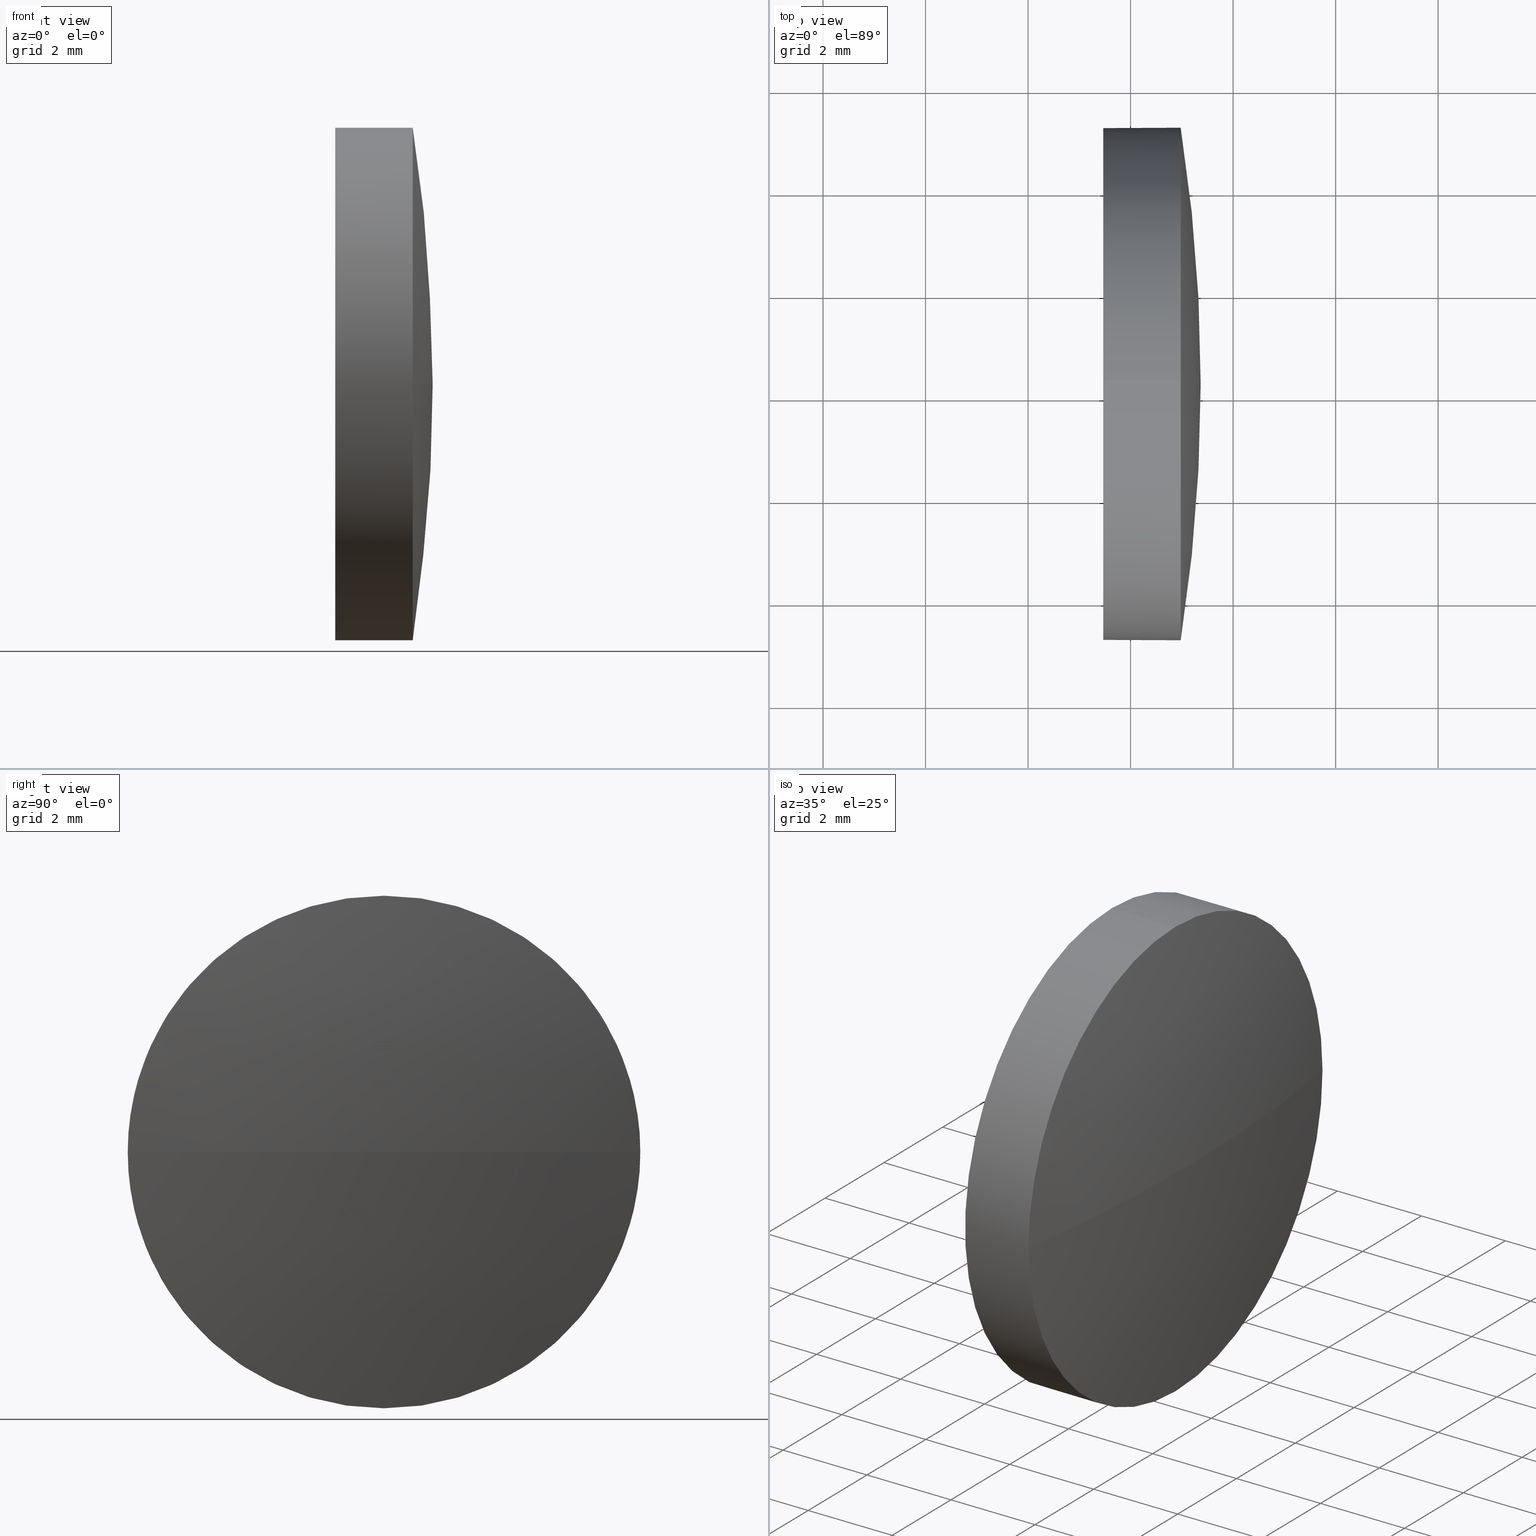
[diagram: canonical four-view strip — front | top / right | iso, engineering-drawing reading convention]
A machine part, canonical four-view strip (front | top / right | iso — engineering-drawing reading convention). The complete STEP part file that produces these views, byte-faithful:
ISO-10303-21;
HEADER;
FILE_DESCRIPTION (( 'STEP AP214' ),
    '1' );
FILE_NAME ('100107.STEP',
    '2019-05-14T01:04:19',
    ( '' ),
    ( '' ),
    'SwSTEP 2.0',
    'SolidWorks 2016',
    '' );
FILE_SCHEMA (( 'AUTOMOTIVE_DESIGN' ));
ENDSEC;

DATA;
#1 = CIRCLE ( 'NONE', #57, 5.000000000000004400 ) ;
#2 = EDGE_CURVE ( 'NONE', #117, #3, #177, .T. ) ;
#3 = VERTEX_POINT ( 'NONE', #33 ) ;
#4 = LINE ( 'NONE', #141, #72 ) ;
#5 = ADVANCED_FACE ( 'NONE', ( #59 ), #35, .T. ) ;
#6 =( GEOMETRIC_REPRESENTATION_CONTEXT ( 3 ) GLOBAL_UNCERTAINTY_ASSIGNED_CONTEXT ( ( #114 ) ) GLOBAL_UNIT_ASSIGNED_CONTEXT ( ( #158, #98, #94 ) ) REPRESENTATION_CONTEXT ( 'NONE', 'WORKASPACE' ) );
#7 = EDGE_LOOP ( 'NONE', ( #173, #161, #135, #27, #102 ) ) ;
#8 = CARTESIAN_POINT ( 'NONE',  ( 565.1214862982791400, 196.2413410998473800, 0.0000000000000000000 ) ) ;
#9 = DIRECTION ( 'NONE',  ( 0.0000000000000000000, -1.000000000000000000, -1.224646799147353200E-016 ) ) ;
#10 = PRODUCT_DEFINITION_FORMATION_WITH_SPECIFIED_SOURCE ( '�κ�', '', #87, .NOT_KNOWN. ) ;
#11 = DIRECTION ( 'NONE',  ( -1.000000000000000000, -0.0000000000000000000, -0.0000000000000000000 ) ) ;
#12 = ORIENTED_EDGE ( 'NONE', *, *, #146, .F. ) ;
#13 = ORIENTED_EDGE ( 'NONE', *, *, #63, .T. ) ;
#14 =( GEOMETRIC_REPRESENTATION_CONTEXT ( 3 ) GLOBAL_UNCERTAINTY_ASSIGNED_CONTEXT ( ( #128 ) ) GLOBAL_UNIT_ASSIGNED_CONTEXT ( ( #38, #92, #54 ) ) REPRESENTATION_CONTEXT ( 'NONE', 'WORKASPACE' ) );
#15 = CIRCLE ( 'NONE', #165, 5.000000000000004400 ) ;
#16 = AXIS2_PLACEMENT_3D ( 'NONE', #166, #139, #106 ) ;
#17 = ORIENTED_EDGE ( 'NONE', *, *, #85, .T. ) ;
#18 =( LENGTH_UNIT ( ) NAMED_UNIT ( * ) SI_UNIT ( .MILLI., .METRE. ) );
#19 = CARTESIAN_POINT ( 'NONE',  ( 596.9777683495610700, 196.2413410998470100, -5.000000000000004400 ) ) ;
#20 = CARTESIAN_POINT ( 'NONE',  ( 595.4677683495610800, 196.2413410998470100, 0.0000000000000000000 ) ) ;
#21 = DIRECTION ( 'NONE',  ( -1.000000000000000000, -0.0000000000000000000, -0.0000000000000000000 ) ) ;
#22 = SPHERICAL_SURFACE ( 'NONE', #178, 32.24628205128185200 ) ;
#23 = DIRECTION ( 'NONE',  ( 0.0000000000000000000, 0.0000000000000000000, 1.000000000000000000 ) ) ;
#24 = DIRECTION ( 'NONE',  ( 0.0000000000000000000, 0.0000000000000000000, 1.000000000000000000 ) ) ;
#25 = ORIENTED_EDGE ( 'NONE', *, *, #103, .T. ) ;
#26 = MECHANICAL_DESIGN_GEOMETRIC_PRESENTATION_REPRESENTATION (  '', ( #162 ), #174 ) ;
#27 = ORIENTED_EDGE ( 'NONE', *, *, #63, .F. ) ;
#28 = PRESENTATION_STYLE_ASSIGNMENT (( #50 ) ) ;
#29 = APPLICATION_CONTEXT ( 'automotive_design' ) ;
#30 = COLOUR_RGB ( '',1.000000000000000000, 1.000000000000000000, 1.000000000000000000 ) ;
#31 = FILL_AREA_STYLE_COLOUR ( '', #101 ) ;
#32 = AXIS2_PLACEMENT_3D ( 'NONE', #134, #58, #118 ) ;
#33 = CARTESIAN_POINT ( 'NONE',  ( 596.9777683495610700, 196.2413410998470100, 5.000000000000004400 ) ) ;
#34 = CARTESIAN_POINT ( 'NONE',  ( 565.1214862982791400, 196.2413410998473800, 0.0000000000000000000 ) ) ;
#35 = SPHERICAL_SURFACE ( 'NONE', #48, 32.24628205128185200 ) ;
#36 = DIRECTION ( 'NONE',  ( -1.000000000000000000, -0.0000000000000000000, -0.0000000000000000000 ) ) ;
#37 = FILL_AREA_STYLE ('',( #111 ) ) ;
#38 =( LENGTH_UNIT ( ) NAMED_UNIT ( * ) SI_UNIT ( .MILLI., .METRE. ) );
#39 = ORIENTED_EDGE ( 'NONE', *, *, #53, .F. ) ;
#40 = ORIENTED_EDGE ( 'NONE', *, *, #103, .F. ) ;
#41 = PRODUCT_RELATED_PRODUCT_CATEGORY ( 'part', '', ( #87 ) ) ;
#42 = ADVANCED_BREP_SHAPE_REPRESENTATION ( '100107', ( #182, #32 ), #14 ) ;
#43 = SURFACE_STYLE_USAGE ( .BOTH. , #137 ) ;
#44 = ORIENTED_EDGE ( 'NONE', *, *, #2, .F. ) ;
#45 = DIRECTION ( 'NONE',  ( 0.0000000000000000000, 0.0000000000000000000, 1.000000000000000000 ) ) ;
#46 = PRESENTATION_STYLE_ASSIGNMENT (( #43 ) ) ;
#47 = DIRECTION ( 'NONE',  ( 0.0000000000000000000, -1.224646799147353200E-016, 1.000000000000000000 ) ) ;
#48 = AXIS2_PLACEMENT_3D ( 'NONE', #8, #152, #167 ) ;
#49 = CARTESIAN_POINT ( 'NONE',  ( 595.4677683495610800, 196.2413410998470100, 0.0000000000000000000 ) ) ;
#50 = SURFACE_STYLE_USAGE ( .BOTH. , #143 ) ;
#51 = ORIENTED_EDGE ( 'NONE', *, *, #67, .F. ) ;
#52 = EDGE_CURVE ( 'NONE', #159, #55, #15, .T. ) ;
#53 = EDGE_CURVE ( 'NONE', #99, #91, #1, .T. ) ;
#54 =( NAMED_UNIT ( * ) SI_UNIT ( $, .STERADIAN. ) SOLID_ANGLE_UNIT ( ) );
#55 = VERTEX_POINT ( 'NONE', #108 ) ;
#56 = CIRCLE ( 'NONE', #109, 32.24628205128185200 ) ;
#57 = AXIS2_PLACEMENT_3D ( 'NONE', #123, #64, #86 ) ;
#58 = DIRECTION ( 'NONE',  ( 0.0000000000000000000, 0.0000000000000000000, 1.000000000000000000 ) ) ;
#59 = FACE_OUTER_BOUND ( 'NONE', #175, .T. ) ;
#60 = ADVANCED_FACE ( 'NONE', ( #115 ), #93, .T. ) ;
#61 = ORIENTED_EDGE ( 'NONE', *, *, #73, .F. ) ;
#62 = SURFACE_STYLE_FILL_AREA ( #37 ) ;
#63 = EDGE_CURVE ( 'NONE', #3, #159, #4, .T. ) ;
#64 = DIRECTION ( 'NONE',  ( -1.000000000000000000, -0.0000000000000000000, -0.0000000000000000000 ) ) ;
#65 = FACE_OUTER_BOUND ( 'NONE', #7, .T. ) ;
#66 = DIRECTION ( 'NONE',  ( 1.000000000000000000, 0.0000000000000000000, 0.0000000000000000000 ) ) ;
#67 = EDGE_CURVE ( 'NONE', #91, #55, #112, .T. ) ;
#68 = DIRECTION ( 'NONE',  ( 0.0000000000000000000, 0.0000000000000000000, -1.000000000000000000 ) ) ;
#69 = CARTESIAN_POINT ( 'NONE',  ( 595.4677683495610800, 196.2413410998470100, 5.000000000000004400 ) ) ;
#70 = EDGE_LOOP ( 'NONE', ( #51, #104, #144, #13, #40 ) ) ;
#71 = CYLINDRICAL_SURFACE ( 'NONE', #77, 5.000000000000004400 ) ;
#72 = VECTOR ( 'NONE', #21, 1000.000000000000000 ) ;
#73 = EDGE_CURVE ( 'NONE', #82, #117, #145, .T. ) ;
#74 = CIRCLE ( 'NONE', #153, 5.000000000000004400 ) ;
#75 = AXIS2_PLACEMENT_3D ( 'NONE', #142, #169, #124 ) ;
#76 = CIRCLE ( 'NONE', #151, 5.000000000000004400 ) ;
#77 = AXIS2_PLACEMENT_3D ( 'NONE', #172, #11, #24 ) ;
#78 =( NAMED_UNIT ( * ) PLANE_ANGLE_UNIT ( ) SI_UNIT ( $, .RADIAN. ) );
#79 = SURFACE_STYLE_FILL_AREA ( #180 ) ;
#80 = PRESENTATION_LAYER_ASSIGNMENT (  '', '', ( #162 ) ) ;
#81 = ADVANCED_FACE ( 'NONE', ( #148 ), #157, .F. ) ;
#82 = VERTEX_POINT ( 'NONE', #83 ) ;
#83 = CARTESIAN_POINT ( 'NONE',  ( 597.3677683495610600, 196.2413410998473800, 0.0000000000000000000 ) ) ;
#84 = CARTESIAN_POINT ( 'NONE',  ( 565.1214862982791400, 196.2413410998473800, 0.0000000000000000000 ) ) ;
#85 = EDGE_CURVE ( 'NONE', #82, #99, #56, .T. ) ;
#86 = DIRECTION ( 'NONE',  ( 0.0000000000000000000, 0.0000000000000000000, 1.000000000000000000 ) ) ;
#87 = PRODUCT ( '100107', '100107', '', ( #105 ) ) ;
#88 = CARTESIAN_POINT ( 'NONE',  ( 596.9777683495610700, 196.2413410998470100, 0.0000000000000000000 ) ) ;
#89 = CLOSED_SHELL ( 'NONE', ( #133, #120, #5, #60, #81 ) ) ;
#90 = STYLED_ITEM ( 'NONE', ( #28 ), #182 ) ;
#91 = VERTEX_POINT ( 'NONE', #19 ) ;
#92 =( NAMED_UNIT ( * ) PLANE_ANGLE_UNIT ( ) SI_UNIT ( $, .RADIAN. ) );
#93 = CYLINDRICAL_SURFACE ( 'NONE', #176, 5.000000000000004400 ) ;
#94 =( NAMED_UNIT ( * ) SI_UNIT ( $, .STERADIAN. ) SOLID_ANGLE_UNIT ( ) );
#95 = DIRECTION ( 'NONE',  ( -1.000000000000000000, -0.0000000000000000000, -0.0000000000000000000 ) ) ;
#96 = CARTESIAN_POINT ( 'NONE',  ( 594.5262178777866200, 196.2413410998470100, -5.000000000000004400 ) ) ;
#97 = DIRECTION ( 'NONE',  ( 0.0000000000000000000, 0.0000000000000000000, 1.000000000000000000 ) ) ;
#98 =( NAMED_UNIT ( * ) PLANE_ANGLE_UNIT ( ) SI_UNIT ( $, .RADIAN. ) );
#99 = VERTEX_POINT ( 'NONE', #125 ) ;
#100 = VECTOR ( 'NONE', #36, 1000.000000000000000 ) ;
#101 = COLOUR_RGB ( '',1.000000000000000000, 1.000000000000000000, 1.000000000000000000 ) ;
#102 = ORIENTED_EDGE ( 'NONE', *, *, #129, .T. ) ;
#103 = EDGE_CURVE ( 'NONE', #55, #159, #136, .T. ) ;
#104 = ORIENTED_EDGE ( 'NONE', *, *, #146, .T. ) ;
#105 = PRODUCT_CONTEXT ( 'NONE', #29, 'mechanical' ) ;
#106 = DIRECTION ( 'NONE',  ( 0.0000000000000000000, 0.0000000000000000000, 1.000000000000000000 ) ) ;
#107 = DIRECTION ( 'NONE',  ( 0.0000000000000000000, 0.0000000000000000000, 1.000000000000000000 ) ) ;
#108 = CARTESIAN_POINT ( 'NONE',  ( 595.4677683495610800, 196.2413410998470100, -5.000000000000004400 ) ) ;
#109 = AXIS2_PLACEMENT_3D ( 'NONE', #84, #47, #9 ) ;
#110 = DIRECTION ( 'NONE',  ( -1.000000000000000000, -0.0000000000000000000, -0.0000000000000000000 ) ) ;
#111 = FILL_AREA_STYLE_COLOUR ( '', #30 ) ;
#112 = LINE ( 'NONE', #96, #100 ) ;
#113 = CARTESIAN_POINT ( 'NONE',  ( 596.9777683495610700, 196.2413410998470100, 0.0000000000000000000 ) ) ;
#114 = UNCERTAINTY_MEASURE_WITH_UNIT (LENGTH_MEASURE( 1.000000000000000100E-005 ), #158, 'distance_accuracy_value', 'NONE');
#115 = FACE_OUTER_BOUND ( 'NONE', #70, .T. ) ;
#116 = MECHANICAL_DESIGN_GEOMETRIC_PRESENTATION_REPRESENTATION (  '', ( #90 ), #6 ) ;
#117 = VERTEX_POINT ( 'NONE', #171 ) ;
#118 = DIRECTION ( 'NONE',  ( 1.000000000000000000, 0.0000000000000000000, 0.0000000000000000000 ) ) ;
#119 = APPLICATION_PROTOCOL_DEFINITION ( 'draft international standard', 'automotive_design', 1998, #163 ) ;
#120 = ADVANCED_FACE ( 'NONE', ( #154 ), #22, .T. ) ;
#121 = ORIENTED_EDGE ( 'NONE', *, *, #52, .T. ) ;
#122 = DIRECTION ( 'NONE',  ( 0.0000000000000000000, 0.0000000000000000000, 1.000000000000000000 ) ) ;
#123 = CARTESIAN_POINT ( 'NONE',  ( 596.9777683495610700, 196.2413410998470100, 0.0000000000000000000 ) ) ;
#124 = DIRECTION ( 'NONE',  ( -1.000000000000000000, 0.0000000000000000000, 0.0000000000000000000 ) ) ;
#125 = CARTESIAN_POINT ( 'NONE',  ( 596.9777683495610700, 201.2413410998470900, 6.123233995736422100E-016 ) ) ;
#126 = DIRECTION ( 'NONE',  ( -1.000000000000000000, -0.0000000000000000000, -0.0000000000000000000 ) ) ;
#127 = ORIENTED_EDGE ( 'NONE', *, *, #85, .F. ) ;
#128 = UNCERTAINTY_MEASURE_WITH_UNIT (LENGTH_MEASURE( 1.000000000000000100E-005 ), #38, 'distance_accuracy_value', 'NONE');
#129 = EDGE_CURVE ( 'NONE', #3, #99, #76, .T. ) ;
#130 = PRODUCT_DEFINITION_SHAPE ( 'NONE', 'NONE',  #168 ) ;
#131 = ORIENTED_EDGE ( 'NONE', *, *, #73, .T. ) ;
#132 = APPLICATION_PROTOCOL_DEFINITION ( 'draft international standard', 'automotive_design', 1998, #29 ) ;
#133 = ADVANCED_FACE ( 'NONE', ( #65 ), #71, .T. ) ;
#134 = CARTESIAN_POINT ( 'NONE',  ( 0.0000000000000000000, 0.0000000000000000000, 0.0000000000000000000 ) ) ;
#135 = ORIENTED_EDGE ( 'NONE', *, *, #52, .F. ) ;
#136 = CIRCLE ( 'NONE', #16, 5.000000000000004400 ) ;
#137 = SURFACE_SIDE_STYLE ('',( #79 ) ) ;
#138 = DIRECTION ( 'NONE',  ( 0.0000000000000000000, 0.0000000000000000000, 1.000000000000000000 ) ) ;
#139 = DIRECTION ( 'NONE',  ( -1.000000000000000000, -0.0000000000000000000, -0.0000000000000000000 ) ) ;
#140 = AXIS2_PLACEMENT_3D ( 'NONE', #49, #66, #68 ) ;
#141 = CARTESIAN_POINT ( 'NONE',  ( 594.5262178777866200, 196.2413410998470100, 5.000000000000004400 ) ) ;
#142 = CARTESIAN_POINT ( 'NONE',  ( 565.1214862982791400, 196.2413410998473800, 0.0000000000000000000 ) ) ;
#143 = SURFACE_SIDE_STYLE ('',( #62 ) ) ;
#144 = ORIENTED_EDGE ( 'NONE', *, *, #2, .T. ) ;
#145 = CIRCLE ( 'NONE', #75, 32.24628205128188100 ) ;
#146 = EDGE_CURVE ( 'NONE', #91, #117, #74, .T. ) ;
#147 = EDGE_LOOP ( 'NONE', ( #61, #17, #185, #44 ) ) ;
#148 = FACE_OUTER_BOUND ( 'NONE', #164, .T. ) ;
#149 = AXIS2_PLACEMENT_3D ( 'NONE', #156, #155, #122 ) ;
#150 = UNCERTAINTY_MEASURE_WITH_UNIT (LENGTH_MEASURE( 1.000000000000000100E-005 ), #18, 'distance_accuracy_value', 'NONE');
#151 = AXIS2_PLACEMENT_3D ( 'NONE', #88, #126, #23 ) ;
#152 = DIRECTION ( 'NONE',  ( 0.0000000000000000000, 0.0000000000000000000, 1.000000000000000000 ) ) ;
#153 = AXIS2_PLACEMENT_3D ( 'NONE', #113, #184, #97 ) ;
#154 = FACE_OUTER_BOUND ( 'NONE', #147, .T. ) ;
#155 = DIRECTION ( 'NONE',  ( -1.000000000000000000, -0.0000000000000000000, -0.0000000000000000000 ) ) ;
#156 = CARTESIAN_POINT ( 'NONE',  ( 596.9777683495610700, 196.2413410998470100, 0.0000000000000000000 ) ) ;
#157 = PLANE ( 'NONE',  #140 ) ;
#158 =( LENGTH_UNIT ( ) NAMED_UNIT ( * ) SI_UNIT ( .MILLI., .METRE. ) );
#159 = VERTEX_POINT ( 'NONE', #69 ) ;
#160 = SHAPE_DEFINITION_REPRESENTATION ( #130, #42 ) ;
#161 = ORIENTED_EDGE ( 'NONE', *, *, #67, .T. ) ;
#162 = STYLED_ITEM ( 'NONE', ( #46 ), #42 ) ;
#163 = APPLICATION_CONTEXT ( 'automotive_design' ) ;
#164 = EDGE_LOOP ( 'NONE', ( #121, #25 ) ) ;
#165 = AXIS2_PLACEMENT_3D ( 'NONE', #20, #110, #107 ) ;
#166 = CARTESIAN_POINT ( 'NONE',  ( 595.4677683495610800, 196.2413410998470100, 0.0000000000000000000 ) ) ;
#167 = DIRECTION ( 'NONE',  ( 0.0000000000000000000, -1.000000000000000000, 0.0000000000000000000 ) ) ;
#168 = PRODUCT_DEFINITION ( 'δ֪', '', #10, #170 ) ;
#169 = DIRECTION ( 'NONE',  ( 0.0000000000000000000, 0.0000000000000000000, -1.000000000000000000 ) ) ;
#170 = PRODUCT_DEFINITION_CONTEXT ( 'detailed design', #163, 'design' ) ;
#171 = CARTESIAN_POINT ( 'NONE',  ( 596.9777683495610700, 191.2413410998472900, 0.0000000000000000000 ) ) ;
#172 = CARTESIAN_POINT ( 'NONE',  ( 594.5262178777866200, 196.2413410998470100, 0.0000000000000000000 ) ) ;
#173 = ORIENTED_EDGE ( 'NONE', *, *, #53, .T. ) ;
#174 =( GEOMETRIC_REPRESENTATION_CONTEXT ( 3 ) GLOBAL_UNCERTAINTY_ASSIGNED_CONTEXT ( ( #150 ) ) GLOBAL_UNIT_ASSIGNED_CONTEXT ( ( #18, #78, #179 ) ) REPRESENTATION_CONTEXT ( 'NONE', 'WORKASPACE' ) );
#175 = EDGE_LOOP ( 'NONE', ( #127, #131, #12, #39 ) ) ;
#176 = AXIS2_PLACEMENT_3D ( 'NONE', #183, #95, #138 ) ;
#177 = CIRCLE ( 'NONE', #149, 5.000000000000004400 ) ;
#178 = AXIS2_PLACEMENT_3D ( 'NONE', #34, #45, #181 ) ;
#179 =( NAMED_UNIT ( * ) SI_UNIT ( $, .STERADIAN. ) SOLID_ANGLE_UNIT ( ) );
#180 = FILL_AREA_STYLE ('',( #31 ) ) ;
#181 = DIRECTION ( 'NONE',  ( 0.0000000000000000000, -1.000000000000000000, 0.0000000000000000000 ) ) ;
#182 = MANIFOLD_SOLID_BREP ( '��ת1', #89 ) ;
#183 = CARTESIAN_POINT ( 'NONE',  ( 594.5262178777866200, 196.2413410998470100, 0.0000000000000000000 ) ) ;
#184 = DIRECTION ( 'NONE',  ( -1.000000000000000000, -0.0000000000000000000, -0.0000000000000000000 ) ) ;
#185 = ORIENTED_EDGE ( 'NONE', *, *, #129, .F. ) ;
#186 = PRESENTATION_LAYER_ASSIGNMENT (  '', '', ( #90 ) ) ;
ENDSEC;
END-ISO-10303-21;
